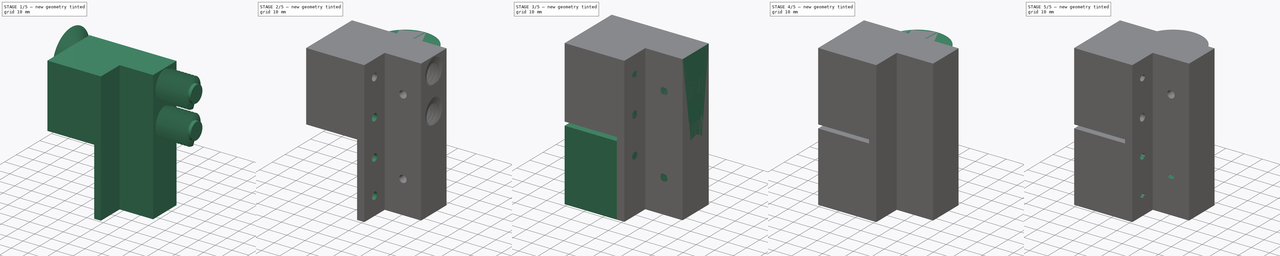
[diagram: build sequence overview — one tinted view per stage of 5, left to right]
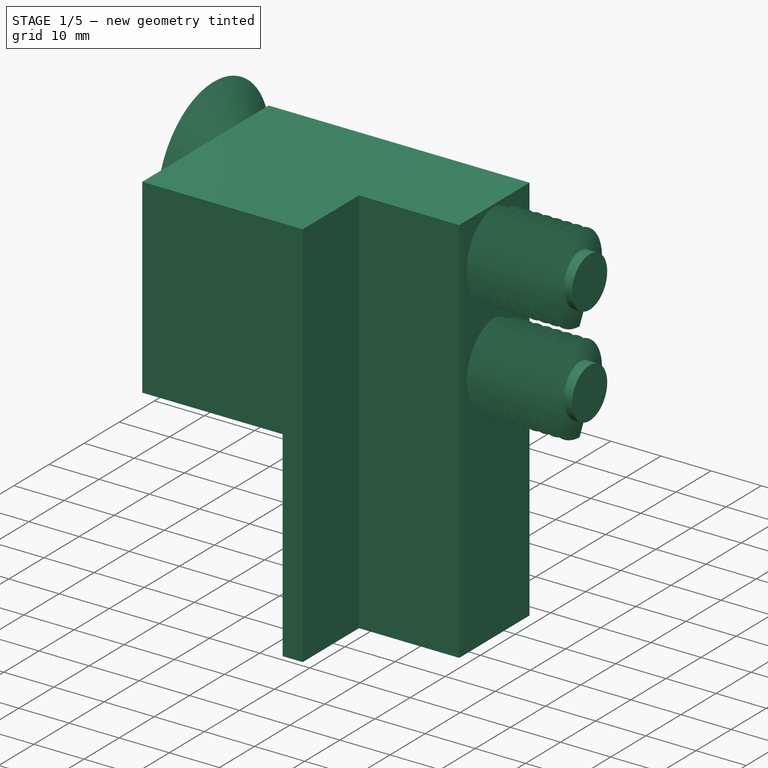
[diagram: stage 1 of 5 — iso view after this stage's code; geometry added in this stage tinted green]
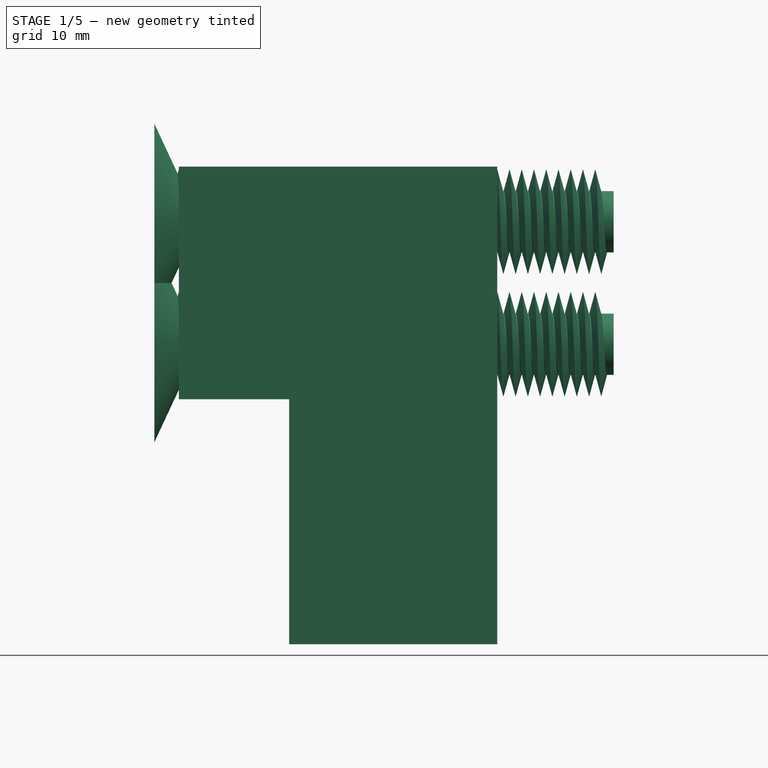
[diagram: stage 1 of 5 — front view after this stage's code; geometry added in this stage tinted green]
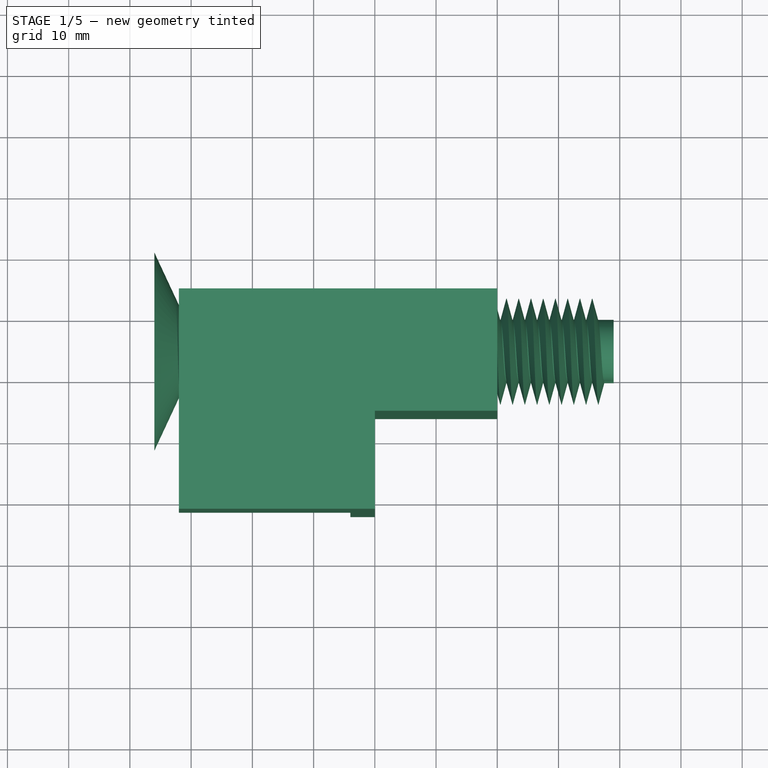
[diagram: stage 1 of 5 — top view after this stage's code; geometry added in this stage tinted green]
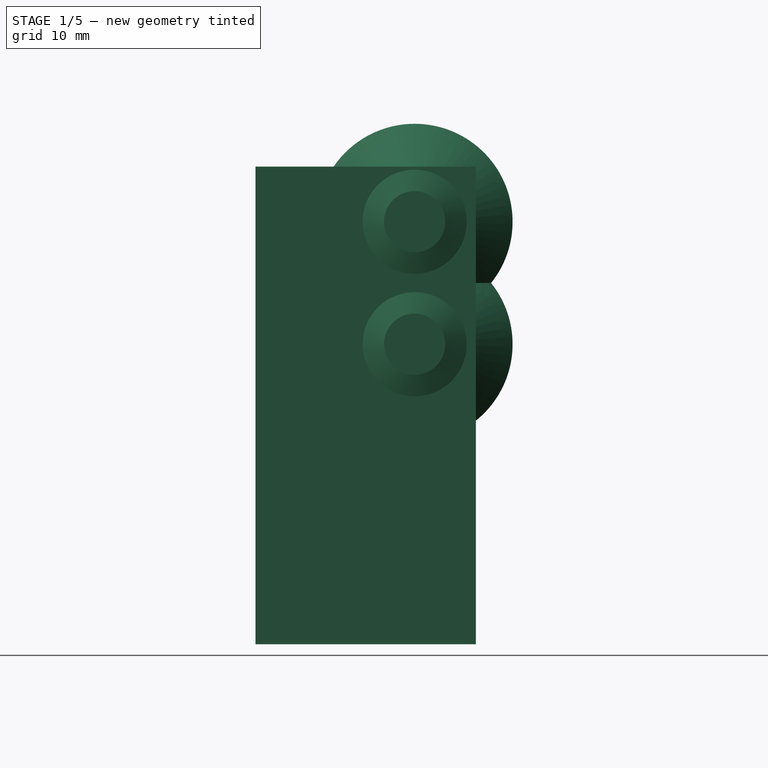
[diagram: stage 1 of 5 — right view after this stage's code; geometry added in this stage tinted green]
FCSTD DOCUMENT  (FreeCAD 1.0R39109 (Git))
Label: MUST_holder
License: All rights reserved
LicenseURL: https://en.wikipedia.org/wiki/All_rights_reserved
objects: Part::Cylinder×40, Part::MultiFuse×39, Part::Box×17, Part::Cut×15, Sketcher::SketchObject×14, PartDesign::Body×14, PartDesign::Pad×7, PartDesign::AdditiveHelix×6, App::Part×5, Part::Cone×5, Part::Chamfer×1, PartDesign::Revolution×1, Part::Prism×1, Part::Sphere×1
note: 203 computed .brp shape members not serialized (recipe doc carries the construction recipe); baked Part::Feature solids carry a one-line shape summary decoded from their .brp

FEATURE [App::Part] Part001  label="Screw"
  Group = -> [Body002,Body003,Body,Body004,Prism,Box013,Sphere,Cut009,Cut010,Cut014,Fusion044,Cut015,Fusion045]
  Origin = -> Origin005
  Placement = pos=(-50,-6,7) rot=(0,1,0;4.71239rad)
FEATURE [Part::Box] Box022  label="Cube022"
  AttacherType = Attacher::AttachEngine3D
  Height = 78
  Length = 20
  Placement = pos=(0,-16,-2) rot=(0,0,1;0rad)
  Width = 20
FEATURE [Part::Box] Box023  label="Cube023"
  AttacherType = Attacher::AttachEngine3D
  Height = 78
  Length = 4
  Placement = pos=(-4,-32,-2) rot=(0,0,1;0rad)
  Width = 36
FEATURE [Part::Box] Box024  label="Cube024"
  AttacherType = Attacher::AttachEngine3D
  Height = 38
  Length = 28
  Placement = pos=(-32,-32,38) rot=(0,0,1;0rad)
  Width = 36
FEATURE [Part::Box] Box025  label="Cube025"
  AttacherType = Attacher::AttachEngine3D
  Height = 40
  Length = 10
  Placement = pos=(-14,-16,-2) rot=(0,0,1;0rad)
  Width = 20
FEATURE [Part::Cone] Cone005
  Angle = 360
  AttacherType = Attacher::AttachEngine3D
  Height = 7
  Placement = pos=(0,0,67) rot=(0,0,1;0rad)
  Radius1 = 1
  Radius2 = 16
FEATURE [Part::Cone] Cone006
  Angle = 360
  AttacherType = Attacher::AttachEngine3D
  Height = 7
  Placement = pos=(0,0,67) rot=(0,0,1;0rad)
  Radius1 = 1
  Radius2 = 16
FEATURE [Part::Cylinder] Cylinder031
  Angle = 360
  AttacherType = Attacher::AttachEngine3D
  FirstAngle = 0
  Height = 32
  Placement = pos=(-32,-24,28) rot=(0,1,0;1.5708rad)
  Radius = 2
  SecondAngle = 0
FEATURE [Part::Cylinder] Cylinder032
  Angle = 360
  AttacherType = Attacher::AttachEngine3D
  FirstAngle = 0
  Height = 4
  Placement = pos=(-4,-24,47) rot=(0,1,0;1.5708rad)
  Radius = 2
  SecondAngle = 0
FEATURE [Part::Cylinder] Cylinder035
  Angle = 360
  AttacherType = Attacher::AttachEngine3D
  FirstAngle = 0
  Height = 2
  Placement = pos=(-32,-24,28) rot=(0,1,0;1.5708rad)
  Radius = 5.5
  SecondAngle = 0
FEATURE [Part::Cylinder] Cylinder036
  Angle = 360
  AttacherType = Attacher::AttachEngine3D
  FirstAngle = 0
  Height = 2
  Placement = pos=(-4,-24,47) rot=(0,1,0;1.5708rad)
  Radius = 5.5
  SecondAngle = 0
FEATURE [Part::Cylinder] Cylinder038
  Angle = 360
  AttacherType = Attacher::AttachEngine3D
  FirstAngle = 0
  Height = 2
  Placement = pos=(10,4,18) rot=(1,0,0;1.5708rad)
  Radius = 5.5
  SecondAngle = 0
FEATURE [Part::Cylinder] Cylinder039
  Angle = 360
  AttacherType = Attacher::AttachEngine3D
  FirstAngle = 0
  Height = 20
  Placement = pos=(10,4,58) rot=(1,0,0;1.5708rad)
  Radius = 2
  SecondAngle = 0
FEATURE [Part::Cylinder] Cylinder040
  Angle = 360
  AttacherType = Attacher::AttachEngine3D
  FirstAngle = 0
  Height = 20
  Placement = pos=(10,4,18) rot=(1,0,0;1.5708rad)
  Radius = 2
  SecondAngle = 0
FEATURE [Part::Cylinder] Cylinder041
  Angle = 360
  AttacherType = Attacher::AttachEngine3D
  FirstAngle = 0
  Height = 2
  Placement = pos=(10,4,58) rot=(1,0,0;1.5708rad)
  Radius = 5.5
  SecondAngle = 0
FEATURE [Part::MultiFuse] Fusion049
  Placement = pos=(0,0,-2) rot=(0,0,1;0rad)
  Shapes = -> [Cylinder038,Cylinder040]
FEATURE [Part::MultiFuse] Fusion050
  Shapes = -> [Cylinder041,Cylinder039]
FEATURE [Part::MultiFuse] Fusion051
  Placement = pos=(0,0,39) rot=(0,0,1;0rad)
  Shapes = -> [Cylinder031,Cylinder035]
FEATURE [Sketcher::SketchObject] Sketch021
  ArcFitTolerance = 0
  AttachmentSupport = -> [XZ_Plane028]
  FullyConstrained = true
  MakeInternals = false
  MapMode = 5
  Placement = pos=(0,0,0) rot=(1,0,0;1.5708rad)
  sketch-geometry (4):
    g0: LineSegment StartX=-4.6 StartY=-1.045 StartZ=0 EndX=-4.6 EndY=1.045 EndZ=0
    g1: LineSegment StartX=-4.6 StartY=1.045 StartZ=0 EndX=-8.5 EndY=1.2e-15 EndZ=0
    g2: LineSegment StartX=-8.5 StartY=1.2e-15 StartZ=0 EndX=-4.6 EndY=-1.045 EndZ=0
    g3: Circle [constr] CenterX=-6.41 CenterY=0 CenterZ=0 NormalX=0 NormalY=0 NormalZ=1 AngleXU=0 Radius=2.09
  constraints (12):
    c: Coincident(g0,g1)
    c: Coincident(g1,g2)
    c: Coincident(g2,g0)
    c: PointOnObject(g0,g3)
    c: PointOnObject(g1,g3)
    c: PointOnObject(g2,g3)
    c: PointOnObject(g3,g-1)
    c: Angle(g0,g-1) = 1.5708
    c: Equal(g1,g2)
    c: Angle(g2,g1) = 0.523599
    c: Distance(g1,g0) = 3.9
    c: Distance(g1,g-2) = 8.5
FEATURE [PartDesign::AdditiveHelix] AdditiveHelix008
  Angle = 0
  Axis = (0,2e-16,1)
  Base = (0,0,0)
  Growth = 0
  HasBeenEdited = true
  Height = 70
  LeftHanded = false
  Mode = 0
  Outside = false
  Pitch = 2
  Placement = pos=(0,0,0) rot=(1,0,0;1.5708rad)
  Profile = -> Sketch021
  ReferenceAxis = -> Sketch021 [V_Axis]
  Suppressed = false
  Tolerance = 0.1
  Turns = 35
FEATURE [PartDesign::Body] Body021
  AllowCompound = false
  Group = -> [Sketch021,AdditiveHelix008]
  Origin = -> Origin028
  Placement = pos=(0,0,1) rot=(0,0,1;0rad)
  Tip = -> AdditiveHelix008
FEATURE [Sketcher::SketchObject] Sketch022
  ArcFitTolerance = 0
  AttachmentSupport = -> [XY_Plane029]
  FullyConstrained = true
  MakeInternals = false
  MapMode = 5
  sketch-geometry (1):
    g0: Circle CenterX=0 CenterY=0 CenterZ=0 NormalX=0 NormalY=0 NormalZ=1 AngleXU=0 Radius=5
  constraints (2):
    c: Coincident(g0,g-1)
    c: Radius(g0) = 5
FEATURE [PartDesign::Pad] Pad009
  Direction = (0,0,1)
  Length = 74
  Length2 = 10
  Profile = -> Sketch022
  ReferenceAxis = -> Sketch022 [N_Axis]
  Suppressed = false
  Type = 0
FEATURE [PartDesign::Body] Body022
  AllowCompound = false
  Group = -> [Sketch022,Pad009]
  Origin = -> Origin029
  Placement = pos=(0,0,-1) rot=(0,0,1;0rad)
  Tip = -> Pad009
FEATURE [Part::MultiFuse] Fusion053
  Shapes = -> [Body022,Body021]
FEATURE [Part::MultiFuse] Fusion054
  Placement = pos=(38,-6,7) rot=(0,-1,0;1.5708rad)
  Shapes = -> [Fusion053,Cone005]
FEATURE [Sketcher::SketchObject] Sketch023
  ArcFitTolerance = 0
  AttachmentSupport = -> [XZ_Plane030]
  FullyConstrained = true
  MakeInternals = false
  MapMode = 5
  Placement = pos=(0,0,0) rot=(1,0,0;1.5708rad)
  sketch-geometry (4):
    g0: LineSegment StartX=-4.6 StartY=-1.045 StartZ=0 EndX=-4.6 EndY=1.045 EndZ=0
    g1: LineSegment StartX=-4.6 StartY=1.045 StartZ=0 EndX=-8.5 EndY=1.2e-15 EndZ=0
    g2: LineSegment StartX=-8.5 StartY=1.2e-15 StartZ=0 EndX=-4.6 EndY=-1.045 EndZ=0
    g3: Circle [constr] CenterX=-6.41 CenterY=0 CenterZ=0 NormalX=0 NormalY=0 NormalZ=1 AngleXU=0 Radius=2.09
  constraints (12):
    c: Coincident(g0,g1)
    c: Coincident(g1,g2)
    c: Coincident(g2,g0)
    c: PointOnObject(g0,g3)
    c: PointOnObject(g1,g3)
    c: PointOnObject(g2,g3)
    c: PointOnObject(g3,g-1)
    c: Angle(g0,g-1) = 1.5708
    c: Equal(g1,g2)
    c: Angle(g2,g1) = 0.523599
    c: Distance(g1,g0) = 3.9
    c: Distance(g1,g-2) = 8.5
FEATURE [PartDesign::AdditiveHelix] AdditiveHelix009
  Angle = 0
  Axis = (0,2e-16,1)
  Base = (0,0,0)
  Growth = 0
  HasBeenEdited = true
  Height = 70
  LeftHanded = false
  Mode = 0
  Outside = false
  Pitch = 2
  Placement = pos=(0,0,0) rot=(1,0,0;1.5708rad)
  Profile = -> Sketch023
  ReferenceAxis = -> Sketch023 [V_Axis]
  Suppressed = false
  Tolerance = 0.1
  Turns = 35
FEATURE [PartDesign::Body] Body023
  AllowCompound = false
  Group = -> [Sketch023,AdditiveHelix009]
  Origin = -> Origin030
  Placement = pos=(0,0,1) rot=(0,0,1;0rad)
  Tip = -> AdditiveHelix009
FEATURE [Sketcher::SketchObject] Sketch024
  ArcFitTolerance = 0
  AttachmentSupport = -> [XY_Plane031]
  FullyConstrained = true
  MakeInternals = false
  MapMode = 5
  sketch-geometry (1):
    g0: Circle CenterX=0 CenterY=0 CenterZ=0 NormalX=0 NormalY=0 NormalZ=1 AngleXU=0 Radius=5
  constraints (2):
    c: Coincident(g0,g-1)
    c: Radius(g0) = 5
FEATURE [PartDesign::Pad] Pad010
  Direction = (0,0,1)
  Length = 74
  Length2 = 10
  Profile = -> Sketch024
  ReferenceAxis = -> Sketch024 [N_Axis]
  Suppressed = false
  Type = 0
FEATURE [PartDesign::Body] Body024
  AllowCompound = false
  Group = -> [Sketch024,Pad010]
  Origin = -> Origin031
  Placement = pos=(0,0,-1) rot=(0,0,1;0rad)
  Tip = -> Pad010
FEATURE [Part::MultiFuse] Fusion055
  Shapes = -> [Body024,Body023]
FEATURE [Part::MultiFuse] Fusion056
  Placement = pos=(38,-6,27) rot=(0,-1,0;1.5708rad)
  Shapes = -> [Fusion055,Cone006]
FEATURE [Part::MultiFuse] Fusion057
  Placement = pos=(0,0,40) rot=(0,0,1;0rad)
  Shapes = -> [Fusion054,Fusion056]
FEATURE [Part::MultiFuse] Fusion059
  Shapes = -> [Box022,Box023,Box024,Box025]
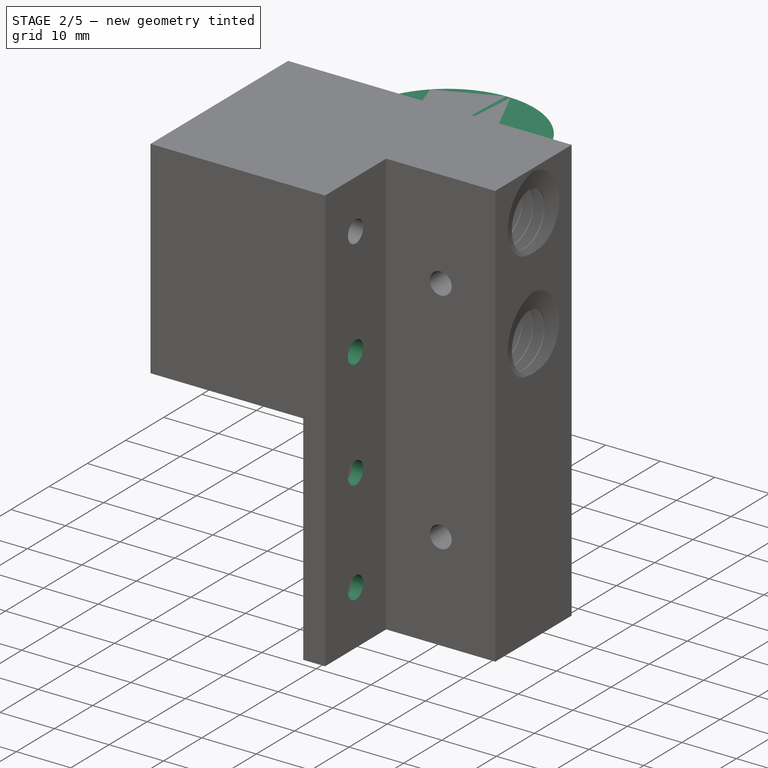
[diagram: stage 2 of 5 — iso view after this stage's code; geometry added in this stage tinted green]
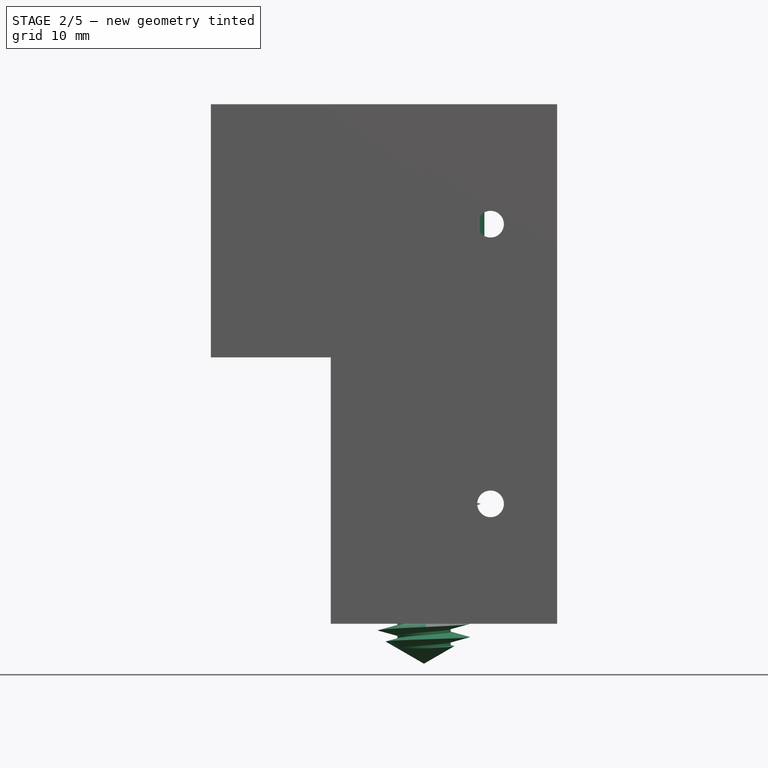
[diagram: stage 2 of 5 — front view after this stage's code; geometry added in this stage tinted green]
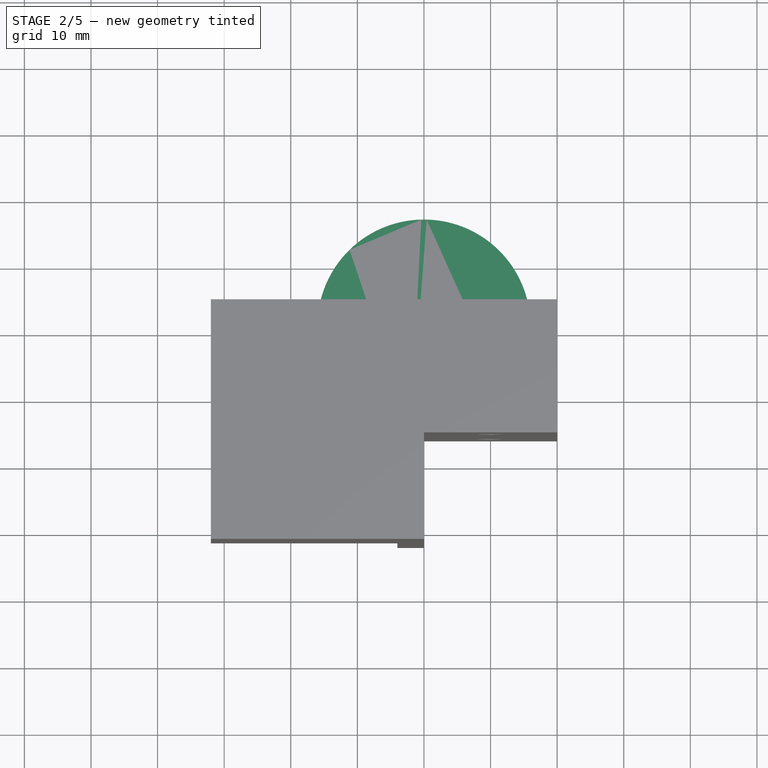
[diagram: stage 2 of 5 — top view after this stage's code; geometry added in this stage tinted green]
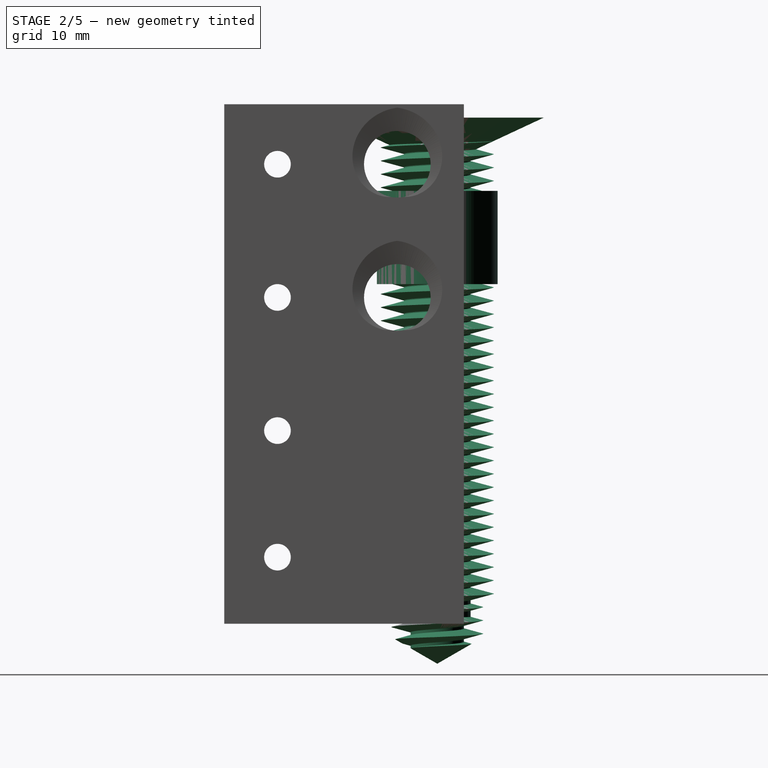
[diagram: stage 2 of 5 — right view after this stage's code; geometry added in this stage tinted green]
FEATURE [App::Part] Part  label="BackyardRightV1"
  Group = -> [Box012,Fusion015,Fusion014,Cut006,Cut002,Cut005,Cut001,Fusion013,Cut004,Fusion,Box002,Box,Box001,Cylinder,Cylinder001,Cylinder002,Cylinder003,Cylinder004,Cylinder005,Box005,Cylinder006,Cylinder007,Cylinder008,Cylinder009,Box009,Box010,Fusion005,Fusion006,Fusion007,Cylinder010,Cylinder011,Cylinder012,Cylinder013,Fusion011,Fusion012,Box011,Cylinder014,Cylinder015,Cut,Cut003,Cut007,Chamfer]
  Origin = -> Origin
  Placement = pos=(0,42,0) rot=(0,0,1;0rad)
FEATURE [Sketcher::SketchObject] Sketch002
  ArcFitTolerance = 0
  AttachmentSupport = -> [XZ_Plane004]
  FullyConstrained = false
  MakeInternals = false
  MapMode = 5
  Placement = pos=(0,0,0) rot=(1,0,0;1.5708rad)
  sketch-geometry (4):
    g0: LineSegment StartX=0 StartY=0 StartZ=0 EndX=0 EndY=2.00024 EndZ=0
    g1: LineSegment StartX=0 StartY=2.00024 StartZ=0 EndX=12.1246 EndY=9.00047 EndZ=0
    g2: LineSegment StartX=12.1246 StartY=9.00047 StartZ=0 EndX=12.1246 EndY=0 EndZ=0
    g3: LineSegment StartX=12.1246 StartY=0 StartZ=0 EndX=0 EndY=0 EndZ=0
  constraints (8):
    c: Coincident(g-1,g0)
    c: PointOnObject(g0,g-2)
    c: Coincident(g0,g1)
    c: Coincident(g1,g2)
    c: PointOnObject(g2,g-1)
    c: Vertical(g2)
    c: Coincident(g2,g3)
    c: Coincident(g3,g0)
FEATURE [PartDesign::Revolution] Revolution
  Angle = 360
  Angle2 = 60
  Axis = (0,2e-16,1)
  Base = (0,0,0)
  Placement = pos=(0,0,0) rot=(1,0,0;1.5708rad)
  Profile = -> Sketch002
  ReferenceAxis = -> Sketch002 [V_Axis]
  Reversed = true
  Suppressed = false
  Type = 0
FEATURE [PartDesign::Body] Body002
  AllowCompound = false
  Group = -> [Sketch002,Revolution]
  Origin = -> Origin004
  Placement = pos=(0,0,-10) rot=(0,0,1;0rad)
  Tip = -> Revolution
FEATURE [Sketcher::SketchObject] Sketch003
  ArcFitTolerance = 0
  AttachmentSupport = -> [XY_Plane006]
  FullyConstrained = false
  MakeInternals = false
  MapMode = 5
  sketch-geometry (1):
    g0: Circle CenterX=0 CenterY=0 CenterZ=0 NormalX=0 NormalY=0 NormalZ=1 AngleXU=0 Radius=9.06827
  constraints (1):
    c: Coincident(g0,g-1)
FEATURE [PartDesign::Pad] Pad001
  Direction = (0,0,1)
  Length = 14
  Length2 = 10
  Profile = -> Sketch003
  ReferenceAxis = -> Sketch003 [N_Axis]
  Suppressed = false
  Type = 0
FEATURE [PartDesign::Body] Body003
  AllowCompound = false
  Group = -> [Sketch003,Pad001]
  Origin = -> Origin006
  Placement = pos=(0,0,48) rot=(0,0,1;0rad)
  Tip = -> Pad001
FEATURE [Sketcher::SketchObject] Sketch
  ArcFitTolerance = 0
  AttachmentSupport = -> [XZ_Plane007]
  FullyConstrained = true
  MakeInternals = false
  MapMode = 5
  Placement = pos=(0,0,0) rot=(1,0,0;1.5708rad)
  sketch-geometry (4):
    g0: LineSegment StartX=-3 StartY=-1.045 StartZ=0 EndX=-3 EndY=1.045 EndZ=0
    g1: LineSegment StartX=-3 StartY=1.045 StartZ=0 EndX=-6.9 EndY=0 EndZ=0
    g2: LineSegment StartX=-6.9 StartY=0 StartZ=0 EndX=-3 EndY=-1.045 EndZ=0
    g3: Circle [constr] CenterX=-4.81 CenterY=0 CenterZ=0 NormalX=0 NormalY=0 NormalZ=1 AngleXU=0 Radius=2.09
  constraints (12):
    c: Coincident(g0,g1)
    c: Coincident(g1,g2)
    c: Coincident(g2,g0)
    c: PointOnObject(g0,g3)
    c: PointOnObject(g1,g3)
    c: PointOnObject(g2,g3)
    c: PointOnObject(g3,g-1)
    c: Angle(g0,g-1) = 1.5708
    c: Equal(g1,g2)
    c: Angle(g2,g1) = 0.523599
    c: Distance(g1,g0) = 3.9
    c: Distance(g1,g-2) = 6.9
FEATURE [PartDesign::AdditiveHelix] AdditiveHelix
  Angle = 0
  Axis = (0,2e-16,1)
  Base = (0,0,0)
  Growth = 0
  HasBeenEdited = true
  Height = 57
  LeftHanded = false
  Mode = 0
  Outside = false
  Pitch = 2
  Placement = pos=(0,0,0) rot=(1,0,0;1.5708rad)
  Profile = -> Sketch
  ReferenceAxis = -> Sketch [V_Axis]
  Suppressed = false
  Tolerance = 0.1
  Turns = 28.5
FEATURE [PartDesign::Body] Body
  AllowCompound = false
  Group = -> [Sketch,AdditiveHelix]
  Origin = -> Origin007
  Placement = pos=(0,0,-7) rot=(0,0,1;0rad)
  Tip = -> AdditiveHelix
FEATURE [Sketcher::SketchObject] Sketch004
  ArcFitTolerance = 0
  AttachmentSupport = -> [XY_Plane008]
  FullyConstrained = true
  MakeInternals = false
  MapMode = 5
  sketch-geometry (1):
    g0: Circle CenterX=0 CenterY=0 CenterZ=0 NormalX=0 NormalY=0 NormalZ=1 AngleXU=0 Radius=4
  constraints (2):
    c: Coincident(g0,g-1)
    c: Radius(g0) = 4
FEATURE [PartDesign::Pad] Pad
  Direction = (0,0,1)
  Length = 60
  Length2 = 10
  Profile = -> Sketch004
  ReferenceAxis = -> Sketch004 [N_Axis]
  Suppressed = false
  Type = 0
FEATURE [PartDesign::Body] Body004
  AllowCompound = false
  Group = -> [Sketch004,Pad]
  Origin = -> Origin008
  Placement = pos=(0,0,-10) rot=(0,0,1;0rad)
  Tip = -> Pad
FEATURE [Part::Prism] Prism
  AttacherType = Attacher::AttachEngine3D
  Circumradius = 8
  FirstAngle = 0
  Height = 12
  Placement = pos=(0,0,100) rot=(0,0,1;0rad)
  Polygon = 6
  SecondAngle = 0
FEATURE [Part::Box] Box013  label="Cube013"
  AttacherType = Attacher::AttachEngine3D
  Height = 10
  Length = 20
  Placement = pos=(-10,-10,70) rot=(0,0,1;0rad)
  Width = 20
FEATURE [Part::Sphere] Sphere
  Angle1 = -90
  Angle2 = 90
  Angle3 = 360
  AttacherType = Attacher::AttachEngine3D
  Placement = pos=(0,0,80) rot=(0,0,1;0rad)
  Radius = 8
FEATURE [Part::Cut] Cut009
  Base = -> Box013
  Placement = pos=(0,0,28) rot=(0,0,1;0rad)
  Tool = -> Sphere
FEATURE [Part::Cut] Cut010
  Base = -> Prism
  Placement = pos=(0,0,-50) rot=(0,0,1;0rad)
  Tool = -> Cut009
FEATURE [Part::Cone] Cone004
  Angle = 360
  AttacherType = Attacher::AttachEngine3D
  Height = 7
  Placement = pos=(0,0,67) rot=(0,0,1;0rad)
  Radius1 = 1
  Radius2 = 16
FEATURE [Sketcher::SketchObject] Sketch019
  ArcFitTolerance = 0
  AttachmentSupport = -> [XZ_Plane025]
  FullyConstrained = true
  MakeInternals = false
  MapMode = 5
  Placement = pos=(0,0,0) rot=(1,0,0;1.5708rad)
  sketch-geometry (4):
    g0: LineSegment StartX=-4.6 StartY=-1.045 StartZ=0 EndX=-4.6 EndY=1.045 EndZ=0
    g1: LineSegment StartX=-4.6 StartY=1.045 StartZ=0 EndX=-8.5 EndY=1.2e-15 EndZ=0
    g2: LineSegment StartX=-8.5 StartY=1e-15 StartZ=0 EndX=-4.6 EndY=-1.045 EndZ=0
    g3: Circle [constr] CenterX=-6.41 CenterY=0 CenterZ=0 NormalX=0 NormalY=0 NormalZ=1 AngleXU=0 Radius=2.09
  constraints (12):
    c: Coincident(g0,g1)
    c: Coincident(g1,g2)
    c: Coincident(g2,g0)
    c: PointOnObject(g0,g3)
    c: PointOnObject(g1,g3)
    c: PointOnObject(g2,g3)
    c: PointOnObject(g3,g-1)
    c: Angle(g0,g-1) = 1.5708
    c: Equal(g1,g2)
    c: Angle(g2,g1) = 0.523599
    c: Distance(g1,g0) = 3.9
    c: Distance(g1,g-2) = 8.5
FEATURE [PartDesign::AdditiveHelix] AdditiveHelix007
  Angle = 0
  Axis = (0,2e-16,1)
  Base = (0,0,0)
  Growth = 0
  HasBeenEdited = true
  Height = 70
  LeftHanded = false
  Mode = 0
  Outside = false
  Pitch = 2
  Placement = pos=(0,0,0) rot=(1,0,0;1.5708rad)
  Profile = -> Sketch019
  ReferenceAxis = -> Sketch019 [V_Axis]
  Suppressed = false
  Tolerance = 0.1
  Turns = 35
FEATURE [PartDesign::Body] Body019
  AllowCompound = false
  Group = -> [Sketch019,AdditiveHelix007]
  Origin = -> Origin025
  Placement = pos=(0,0,1) rot=(0,0,1;0rad)
  Tip = -> AdditiveHelix007
FEATURE [Sketcher::SketchObject] Sketch020
  ArcFitTolerance = 0
  AttachmentSupport = -> [XY_Plane026]
  FullyConstrained = true
  MakeInternals = false
  MapMode = 5
  sketch-geometry (1):
    g0: Circle CenterX=0 CenterY=0 CenterZ=0 NormalX=0 NormalY=0 NormalZ=1 AngleXU=0 Radius=5
  constraints (2):
    c: Coincident(g0,g-1)
    c: Radius(g0) = 5
FEATURE [PartDesign::Pad] Pad008
  Direction = (0,0,1)
  Length = 74
  Length2 = 10
  Profile = -> Sketch020
  ReferenceAxis = -> Sketch020 [N_Axis]
  Suppressed = false
  Type = 0
FEATURE [PartDesign::Body] Body020
  AllowCompound = false
  Group = -> [Sketch020,Pad008]
  Origin = -> Origin026
  Placement = pos=(0,0,-1) rot=(0,0,1;0rad)
  Tip = -> Pad008
FEATURE [Part::MultiFuse] Fusion040
  Shapes = -> [Body020,Body019]
FEATURE [App::Part] Part002  label="BackyardRightV2"
  Group = -> [Fusion043,Box014,Box015,Box019,Box021,Cylinder016,Cylinder017,Cylinder018,Cylinder019,Cylinder022,Cylinder023,Cylinder024,Cylinder025,Cylinder026,Cylinder027,Cylinder028,Cylinder029,Fusion019,Fusion020,Fusion021,Fusion022,Fusion023,Fusion027,Fusion028,Fusion041,Body019,Body020,Cone004,Fusion040,Fusion042,Cut012,Fusion039,Body017,Body018,Cone003,Fusion038,Cut013]
  Origin = -> Origin009
FEATURE [Part::Cut] Cut014
  Base = -> Body003
  Placement = pos=(0,0,1) rot=(0,0,1;0rad)
  Tool = -> Cut010
FEATURE [Part::MultiFuse] Fusion044
  Shapes = -> [Body,Body004]
FEATURE [Part::Cut] Cut015
  Base = -> Fusion044
  Tool = -> Body002
FEATURE [Part::MultiFuse] Fusion045
  Shapes = -> [Cut015,Cut014]
FEATURE [Part::Cylinder] Cylinder030
  Angle = 360
  AttacherType = Attacher::AttachEngine3D
  FirstAngle = 0
  Height = 32
  Placement = pos=(-24,-24,9) rot=(0,1,0;1.5708rad)
  Radius = 2
  SecondAngle = 0
FEATURE [Part::Cylinder] Cylinder033
  Angle = 360
  AttacherType = Attacher::AttachEngine3D
  FirstAngle = 0
  Height = 4
  Placement = pos=(-4,-24,66) rot=(0,1,0;1.5708rad)
  Radius = 2
  SecondAngle = 0
FEATURE [Part::Cylinder] Cylinder034
  Angle = 360
  AttacherType = Attacher::AttachEngine3D
  FirstAngle = 0
  Height = 2
  Placement = pos=(-24,-24,9) rot=(0,1,0;1.5708rad)
  Radius = 5.5
  SecondAngle = 0
FEATURE [Part::Cylinder] Cylinder037
  Angle = 360
  AttacherType = Attacher::AttachEngine3D
  FirstAngle = 0
  Height = 2
  Placement = pos=(-4,-24,66) rot=(0,1,0;1.5708rad)
  Radius = 5.5
  SecondAngle = 0
FEATURE [Part::MultiFuse] Fusion046
  Placement = pos=(-8,0,38) rot=(0,1,0;0rad)
  Shapes = -> [Cylinder030,Cylinder034]
FEATURE [Part::MultiFuse] Fusion047
  Placement = pos=(0,0,-39) rot=(0,0,1;0rad)
  Shapes = -> [Cylinder033,Cylinder037]
FEATURE [Part::MultiFuse] Fusion048
  Placement = pos=(0,0,-39) rot=(0,0,1;0rad)
  Shapes = -> [Cylinder032,Cylinder036]
FEATURE [Part::MultiFuse] Fusion058
  Shapes = -> [Fusion046,Fusion047,Fusion048,Fusion049,Fusion050,Fusion051,Fusion057]
FEATURE [Part::Cut] Cut016
  Base = -> Fusion059
  Tool = -> Fusion058
FEATURE [App::Part] Part004  label="BackyardLeftV2"
  Group = -> [Box022,Box023,Fusion048,Fusion049,Fusion050,Box025,Fusion051,Box024,Body023,Cylinder040,Cylinder030,Cylinder033,Cylinder034,Cylinder041,Fusion046,Cylinder032,Body021,Body024,Fusion056,Cone005,Cone006,Fusion053,Fusion054,Cylinder039,Cylinder031,Fusion047,Fusion058,Cylinder035,Fusion055,Fusion057,Cylinder036,Cylinder038,Body022,Cylinder037,Fusion059,Cut016]
  Origin = -> Origin027
  Placement = pos=(0,0,100) rot=(0,0,1;0rad)
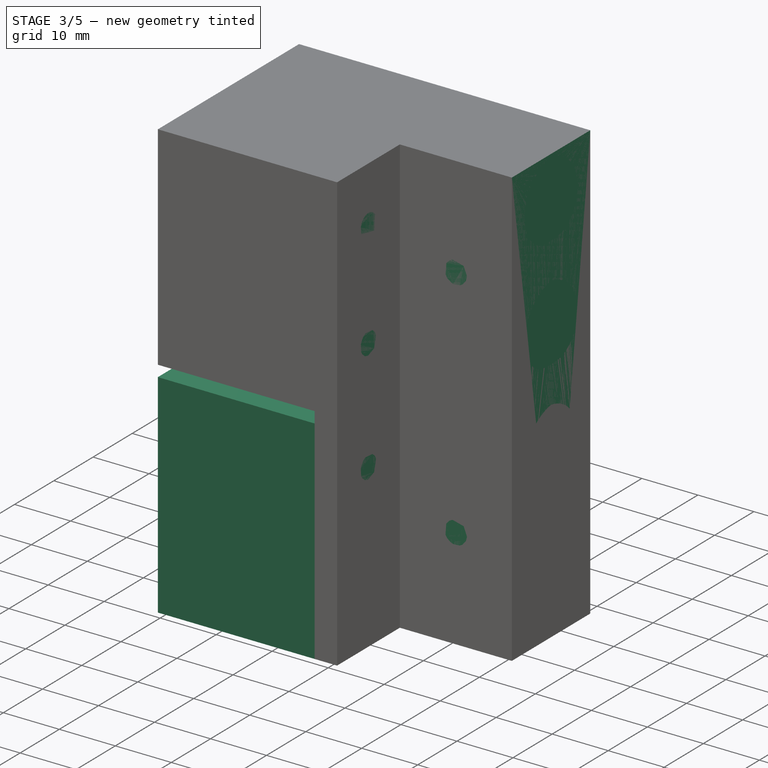
[diagram: stage 3 of 5 — iso view after this stage's code; geometry added in this stage tinted green]
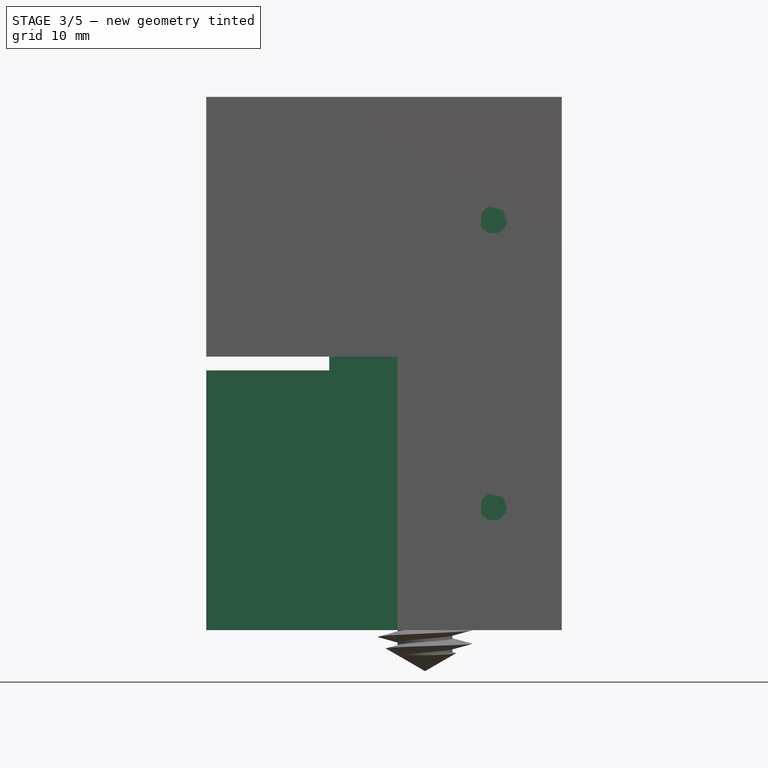
[diagram: stage 3 of 5 — front view after this stage's code; geometry added in this stage tinted green]
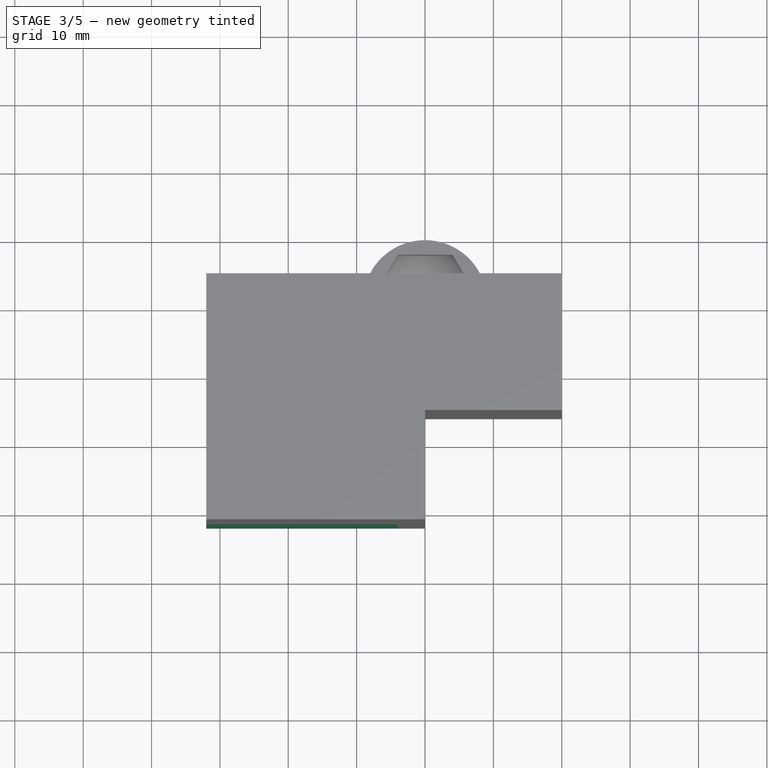
[diagram: stage 3 of 5 — top view after this stage's code; geometry added in this stage tinted green]
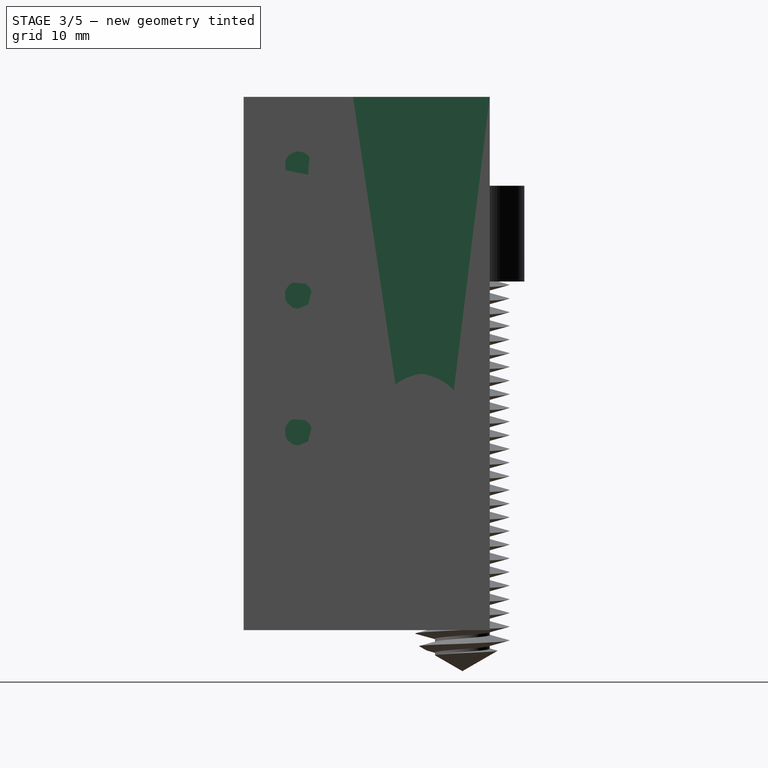
[diagram: stage 3 of 5 — right view after this stage's code; geometry added in this stage tinted green]
FEATURE [Part::Box] Box014  label="Cube014"
  AttacherType = Attacher::AttachEngine3D
  Height = 78
  Length = 20
  Placement = pos=(0,-16,-2) rot=(0,0,1;0rad)
  Width = 20
FEATURE [Part::Box] Box015  label="Cube015"
  AttacherType = Attacher::AttachEngine3D
  Height = 78
  Length = 4
  Placement = pos=(-4,-32,-2) rot=(0,0,1;0rad)
  Width = 36
FEATURE [Part::Box] Box019  label="Cube019"
  AttacherType = Attacher::AttachEngine3D
  Height = 38
  Length = 28
  Placement = pos=(-32,-32,-2) rot=(0,0,1;0rad)
  Width = 36
FEATURE [Part::Box] Box021  label="Cube021"
  AttacherType = Attacher::AttachEngine3D
  Height = 40
  Length = 10
  Placement = pos=(-14,-16,36) rot=(0,0,1;0rad)
  Width = 20
FEATURE [Part::Cylinder] Cylinder017
  Angle = 360
  AttacherType = Attacher::AttachEngine3D
  FirstAngle = 0
  Height = 32
  Placement = pos=(-32,-24,28) rot=(0,1,0;1.5708rad)
  Radius = 2
  SecondAngle = 0
FEATURE [Part::Cylinder] Cylinder018
  Angle = 360
  AttacherType = Attacher::AttachEngine3D
  FirstAngle = 0
  Height = 4
  Placement = pos=(-4,-24,47) rot=(0,1,0;1.5708rad)
  Radius = 2
  SecondAngle = 0
FEATURE [Part::Cylinder] Cylinder019
  Angle = 360
  AttacherType = Attacher::AttachEngine3D
  FirstAngle = 0
  Height = 4
  Placement = pos=(-4,-24,66) rot=(0,1,0;1.5708rad)
  Radius = 2
  SecondAngle = 0
FEATURE [Part::Cylinder] Cylinder023
  Angle = 360
  AttacherType = Attacher::AttachEngine3D
  FirstAngle = 0
  Height = 2
  Placement = pos=(-32,-24,28) rot=(0,1,0;1.5708rad)
  Radius = 5.5
  SecondAngle = 0
FEATURE [Part::Cylinder] Cylinder024
  Angle = 360
  AttacherType = Attacher::AttachEngine3D
  FirstAngle = 0
  Height = 2
  Placement = pos=(-4,-24,47) rot=(0,1,0;1.5708rad)
  Radius = 5.5
  SecondAngle = 0
FEATURE [Part::Cylinder] Cylinder025
  Angle = 360
  AttacherType = Attacher::AttachEngine3D
  FirstAngle = 0
  Height = 2
  Placement = pos=(-4,-24,66) rot=(0,1,0;1.5708rad)
  Radius = 5.5
  SecondAngle = 0
FEATURE [Part::Cylinder] Cylinder026
  Angle = 360
  AttacherType = Attacher::AttachEngine3D
  FirstAngle = 0
  Height = 2
  Placement = pos=(10,4,18) rot=(1,0,0;1.5708rad)
  Radius = 5.5
  SecondAngle = 0
FEATURE [Part::Cylinder] Cylinder027
  Angle = 360
  AttacherType = Attacher::AttachEngine3D
  FirstAngle = 0
  Height = 20
  Placement = pos=(10,4,58) rot=(1,0,0;1.5708rad)
  Radius = 2
  SecondAngle = 0
FEATURE [Part::Cylinder] Cylinder028
  Angle = 360
  AttacherType = Attacher::AttachEngine3D
  FirstAngle = 0
  Height = 20
  Placement = pos=(10,4,18) rot=(1,0,0;1.5708rad)
  Radius = 2
  SecondAngle = 0
FEATURE [Part::Cylinder] Cylinder029
  Angle = 360
  AttacherType = Attacher::AttachEngine3D
  FirstAngle = 0
  Height = 2
  Placement = pos=(10,4,58) rot=(1,0,0;1.5708rad)
  Radius = 5.5
  SecondAngle = 0
FEATURE [Part::MultiFuse] Fusion021
  Shapes = -> [Cylinder018,Cylinder024]
FEATURE [Part::MultiFuse] Fusion022
  Placement = pos=(0,0,-2) rot=(0,0,1;0rad)
  Shapes = -> [Cylinder026,Cylinder028]
FEATURE [Part::MultiFuse] Fusion023
  Shapes = -> [Cylinder029,Cylinder027]
FEATURE [Part::MultiFuse] Fusion027
  Placement = pos=(0,0,-1) rot=(0,0,1;0rad)
  Shapes = -> [Cylinder017,Cylinder023]
FEATURE [Part::MultiFuse] Fusion028
  Shapes = -> [Box021,Box015,Box019,Box014]
FEATURE [App::Part] Part003  label="ScrewCut"
  Group = -> [Body005,Body008,Cone,Fusion032,Fusion033]
  Origin = -> Origin011
  Placement = pos=(-50,-6,27) rot=(0,1,0;4.71239rad)
FEATURE [Part::Cone] Cone003
  Angle = 360
  AttacherType = Attacher::AttachEngine3D
  Height = 7
  Placement = pos=(0,0,67) rot=(0,0,1;0rad)
  Radius1 = 1
  Radius2 = 16
FEATURE [Sketcher::SketchObject] Sketch017
  ArcFitTolerance = 0
  AttachmentSupport = -> [XZ_Plane023]
  FullyConstrained = true
  MakeInternals = false
  MapMode = 5
  Placement = pos=(0,0,0) rot=(1,0,0;1.5708rad)
  sketch-geometry (4):
    g0: LineSegment StartX=-4.6 StartY=-1.045 StartZ=0 EndX=-4.6 EndY=1.045 EndZ=0
    g1: LineSegment StartX=-4.6 StartY=1.045 StartZ=0 EndX=-8.5 EndY=1.2e-15 EndZ=0
    g2: LineSegment StartX=-8.5 StartY=1.2e-15 StartZ=0 EndX=-4.6 EndY=-1.045 EndZ=0
    g3: Circle [constr] CenterX=-6.41 CenterY=0 CenterZ=0 NormalX=0 NormalY=0 NormalZ=1 AngleXU=0 Radius=2.09
  constraints (12):
    c: Coincident(g0,g1)
    c: Coincident(g1,g2)
    c: Coincident(g2,g0)
    c: PointOnObject(g0,g3)
    c: PointOnObject(g1,g3)
    c: PointOnObject(g2,g3)
    c: PointOnObject(g3,g-1)
    c: Angle(g0,g-1) = 1.5708
    c: Equal(g1,g2)
    c: Angle(g2,g1) = 0.523599
    c: Distance(g1,g0) = 3.9
    c: Distance(g1,g-2) = 8.5
FEATURE [PartDesign::AdditiveHelix] AdditiveHelix006
  Angle = 0
  Axis = (0,2e-16,1)
  Base = (0,0,0)
  Growth = 0
  HasBeenEdited = true
  Height = 70
  LeftHanded = false
  Mode = 0
  Outside = false
  Pitch = 2
  Placement = pos=(0,0,0) rot=(1,0,0;1.5708rad)
  Profile = -> Sketch017
  ReferenceAxis = -> Sketch017 [V_Axis]
  Suppressed = false
  Tolerance = 0.1
  Turns = 35
FEATURE [PartDesign::Body] Body017
  AllowCompound = false
  Group = -> [Sketch017,AdditiveHelix006]
  Origin = -> Origin023
  Placement = pos=(0,0,1) rot=(0,0,1;0rad)
  Tip = -> AdditiveHelix006
FEATURE [Sketcher::SketchObject] Sketch018
  ArcFitTolerance = 0
  AttachmentSupport = -> [XY_Plane024]
  FullyConstrained = true
  MakeInternals = false
  MapMode = 5
  sketch-geometry (1):
    g0: Circle CenterX=0 CenterY=0 CenterZ=0 NormalX=0 NormalY=0 NormalZ=1 AngleXU=0 Radius=5
  constraints (2):
    c: Coincident(g0,g-1)
    c: Radius(g0) = 5
FEATURE [PartDesign::Pad] Pad007
  Direction = (0,0,1)
  Length = 74
  Length2 = 10
  Profile = -> Sketch018
  ReferenceAxis = -> Sketch018 [N_Axis]
  Suppressed = false
  Type = 0
FEATURE [PartDesign::Body] Body018
  AllowCompound = false
  Group = -> [Sketch018,Pad007]
  Origin = -> Origin024
  Placement = pos=(0,0,-1) rot=(0,0,1;0rad)
  Tip = -> Pad007
FEATURE [Part::MultiFuse] Fusion038
  Shapes = -> [Body018,Body017]
FEATURE [Part::MultiFuse] Fusion039
  Placement = pos=(38,-6,7) rot=(0,-1,0;1.5708rad)
  Shapes = -> [Fusion038,Cone003]
FEATURE [Part::MultiFuse] Fusion041
  Placement = pos=(38,-6,27) rot=(0,-1,0;1.5708rad)
  Shapes = -> [Fusion040,Cone004]
FEATURE [Part::MultiFuse] Fusion042
  Shapes = -> [Fusion039,Fusion041]
FEATURE [Part::Cut] Cut012
  Base = -> Fusion028
  Tool = -> Fusion042
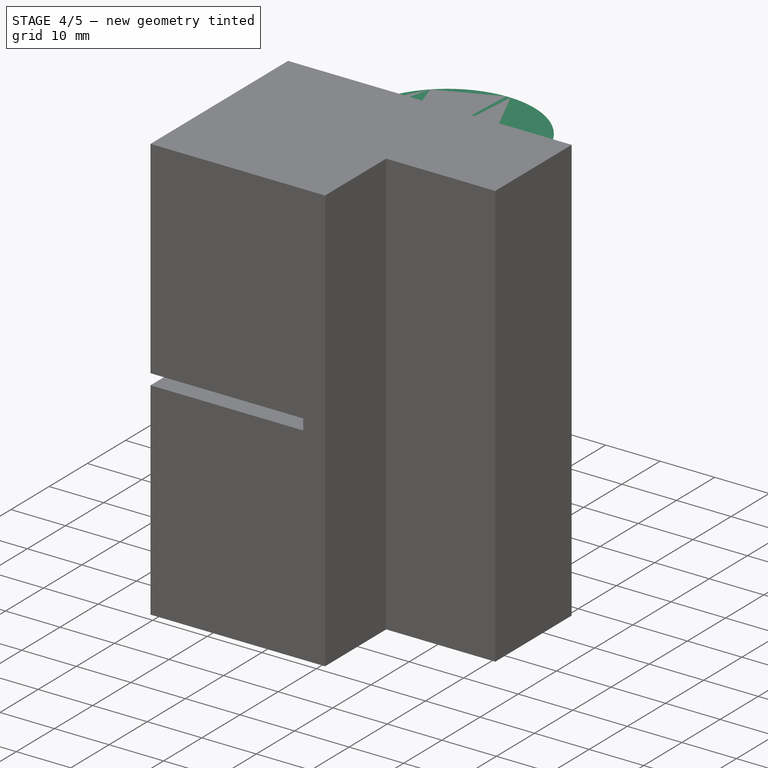
[diagram: stage 4 of 5 — iso view after this stage's code; geometry added in this stage tinted green]
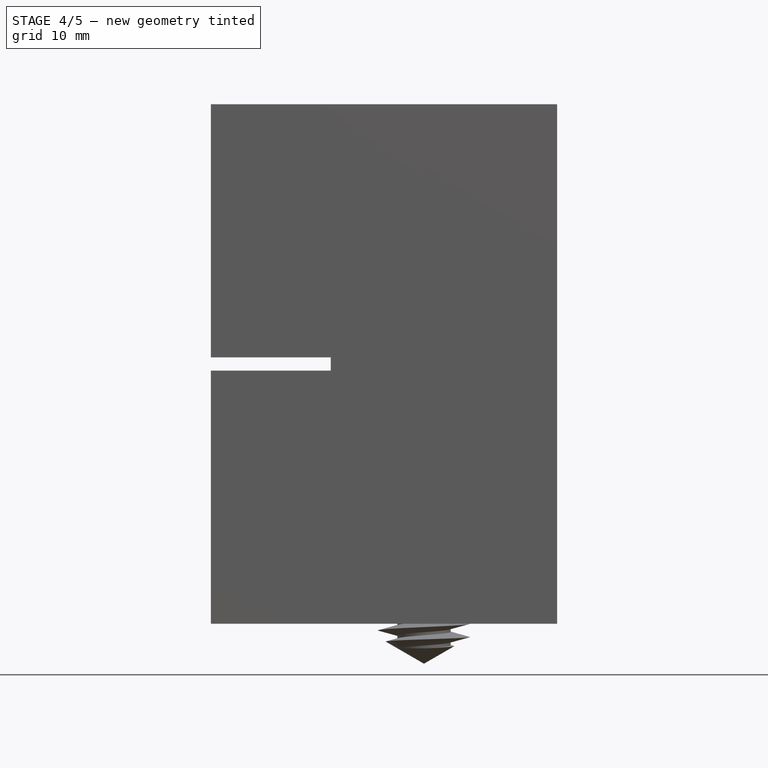
[diagram: stage 4 of 5 — front view after this stage's code; geometry added in this stage tinted green]
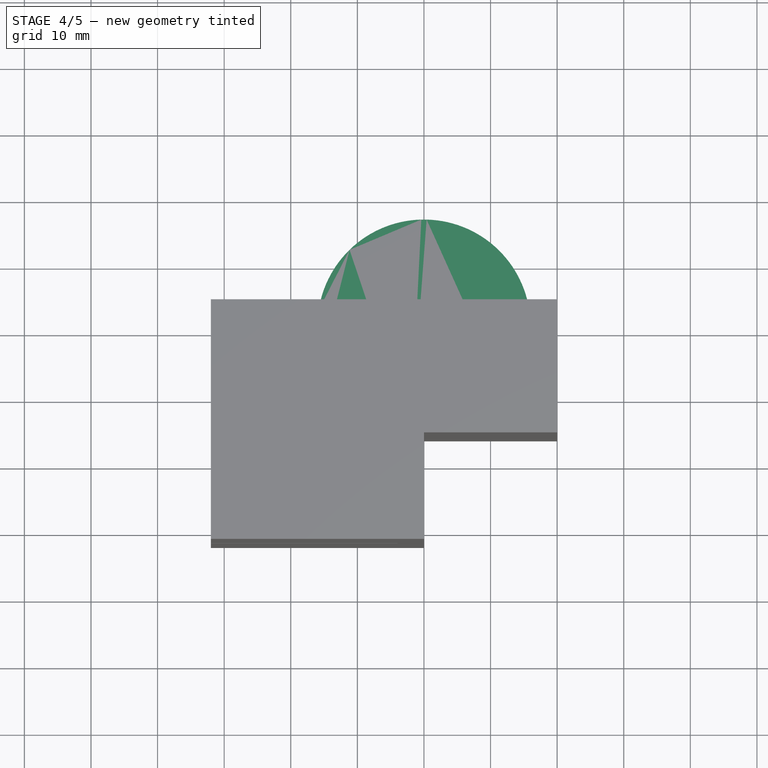
[diagram: stage 4 of 5 — top view after this stage's code; geometry added in this stage tinted green]
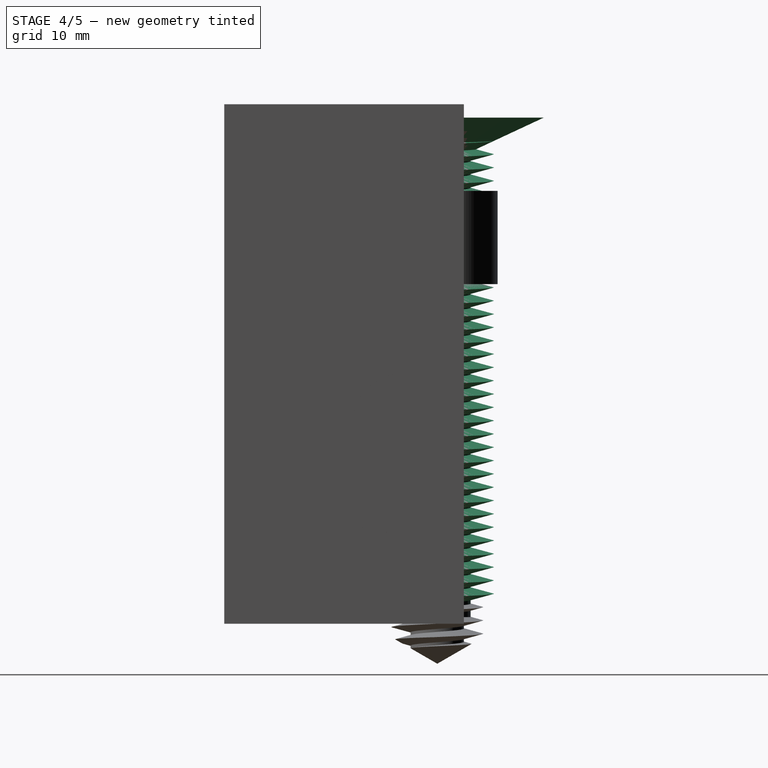
[diagram: stage 4 of 5 — right view after this stage's code; geometry added in this stage tinted green]
FEATURE [Part::Box] Box  label="Cube"
  AttacherType = Attacher::AttachEngine3D
  Height = 76
  Length = 20
  Width = 4
FEATURE [Part::Box] Box001  label="Cube001"
  AttacherType = Attacher::AttachEngine3D
  Height = 76
  Length = 4
  Placement = pos=(-4,-32,0) rot=(0,0,1;0rad)
  Width = 36
FEATURE [Part::Box] Box002  label="Cube002"
  AttacherType = Attacher::AttachEngine3D
  Height = 76
  Length = 20
  Placement = pos=(0,-16,0) rot=(0,0,1;0rad)
  Width = 4
FEATURE [Part::Cylinder] Cylinder004
  Angle = 360
  AttacherType = Attacher::AttachEngine3D
  FirstAngle = 0
  Height = 22
  Placement = pos=(-32,-6,9) rot=(0,1,0;1.5708rad)
  Radius = 2.2
  SecondAngle = 0
FEATURE [Part::Cylinder] Cylinder005
  Angle = 360
  AttacherType = Attacher::AttachEngine3D
  FirstAngle = 0
  Height = 22
  Placement = pos=(-32,-6,28) rot=(0,1,0;1.5708rad)
  Radius = 2.2
  SecondAngle = 0
FEATURE [Part::Box] Box005  label="Cube005"
  AttacherType = Attacher::AttachEngine3D
  Height = 40
  Length = 20
  Placement = pos=(0,-12,36) rot=(0,0,1;0rad)
  Width = 12
FEATURE [Part::Box] Box009  label="Cube009"
  AttacherType = Attacher::AttachEngine3D
  Height = 1
  Length = 0.3
  Placement = pos=(0,-12,0) rot=(0,0,1;0rad)
  Width = 12
FEATURE [Part::Box] Box010  label="Cube010"
  AttacherType = Attacher::AttachEngine3D
  Height = 36
  Length = 28
  Placement = pos=(-32,-32,0) rot=(0,0,1;0rad)
  Width = 36
FEATURE [Part::Box] Box011  label="Cube011"
  AttacherType = Attacher::AttachEngine3D
  Height = 36
  Length = 18
  Placement = pos=(2,-12,0) rot=(0,0,1;0rad)
  Width = 12
FEATURE [Part::Box] Box012  label="Cube012"
  AttacherType = Attacher::AttachEngine3D
  Height = 40
  Length = 10
  Placement = pos=(-14,-16,36) rot=(0,0,1;0rad)
  Width = 20
FEATURE [Part::Cylinder] Cylinder014
  Angle = 360
  AttacherType = Attacher::AttachEngine3D
  FirstAngle = 0
  Height = 30
  Placement = pos=(-10,-6,28) rot=(0,1,0;1.5708rad)
  Radius = 3.7
  SecondAngle = 0
FEATURE [Part::Cylinder] Cylinder015
  Angle = 360
  AttacherType = Attacher::AttachEngine3D
  FirstAngle = 0
  Height = 30
  Placement = pos=(-10,-6,9) rot=(0,1,0;1.5708rad)
  Radius = 3.7
  SecondAngle = 0
FEATURE [Part::MultiFuse] Fusion014
  Shapes = -> [Cylinder005,Cylinder014]
FEATURE [Part::MultiFuse] Fusion015
  Shapes = -> [Box001,Box002,Box005,Box011,Box009,Box,Box012,Box010]
FEATURE [Part::Cut] Cut
  Base = -> Fusion015
  Tool = -> Fusion014
FEATURE [Part::Cylinder] Cylinder016
  Angle = 360
  AttacherType = Attacher::AttachEngine3D
  FirstAngle = 0
  Height = 32
  Placement = pos=(-24,-24,9) rot=(0,1,0;1.5708rad)
  Radius = 2
  SecondAngle = 0
FEATURE [Part::Cylinder] Cylinder022
  Angle = 360
  AttacherType = Attacher::AttachEngine3D
  FirstAngle = 0
  Height = 2
  Placement = pos=(-24,-24,9) rot=(0,1,0;1.5708rad)
  Radius = 5.5
  SecondAngle = 0
FEATURE [Part::MultiFuse] Fusion019
  Placement = pos=(-8,0,-2) rot=(0,1,0;0rad)
  Shapes = -> [Cylinder016,Cylinder022]
FEATURE [Part::MultiFuse] Fusion020
  Shapes = -> [Cylinder019,Cylinder025]
FEATURE [Sketcher::SketchObject] Sketch005
  ArcFitTolerance = 0
  AttachmentSupport = -> [XZ_Plane013]
  FullyConstrained = true
  MakeInternals = false
  MapMode = 5
  Placement = pos=(0,0,0) rot=(1,0,0;1.5708rad)
  sketch-geometry (4):
    g0: LineSegment StartX=-4.6 StartY=-1.045 StartZ=0 EndX=-4.6 EndY=1.045 EndZ=0
    g1: LineSegment StartX=-4.6 StartY=1.045 StartZ=0 EndX=-8.5 EndY=1.2e-15 EndZ=0
    g2: LineSegment StartX=-8.5 StartY=1e-15 StartZ=0 EndX=-4.6 EndY=-1.045 EndZ=0
    g3: Circle [constr] CenterX=-6.41 CenterY=0 CenterZ=0 NormalX=0 NormalY=0 NormalZ=1 AngleXU=0 Radius=2.09
  constraints (12):
    c: Coincident(g0,g1)
    c: Coincident(g1,g2)
    c: Coincident(g2,g0)
    c: PointOnObject(g0,g3)
    c: PointOnObject(g1,g3)
    c: PointOnObject(g2,g3)
    c: PointOnObject(g3,g-1)
    c: Angle(g0,g-1) = 1.5708
    c: Equal(g1,g2)
    c: Angle(g2,g1) = 0.523599
    c: Distance(g1,g0) = 3.9
    c: Distance(g1,g-2) = 8.5
FEATURE [PartDesign::AdditiveHelix] AdditiveHelix001
  Angle = 0
  Axis = (0,2e-16,1)
  Base = (0,0,0)
  Growth = 0
  HasBeenEdited = true
  Height = 70
  LeftHanded = false
  Mode = 0
  Outside = false
  Pitch = 2
  Placement = pos=(0,0,0) rot=(1,0,0;1.5708rad)
  Profile = -> Sketch005
  ReferenceAxis = -> Sketch005 [V_Axis]
  Suppressed = false
  Tolerance = 0.1
  Turns = 35
FEATURE [PartDesign::Body] Body005
  AllowCompound = false
  Group = -> [Sketch005,AdditiveHelix001]
  Origin = -> Origin013
  Placement = pos=(0,0,1) rot=(0,0,1;0rad)
  Tip = -> AdditiveHelix001
FEATURE [Sketcher::SketchObject] Sketch008
  ArcFitTolerance = 0
  AttachmentSupport = -> [XY_Plane014]
  FullyConstrained = true
  MakeInternals = false
  MapMode = 5
  sketch-geometry (1):
    g0: Circle CenterX=0 CenterY=0 CenterZ=0 NormalX=0 NormalY=0 NormalZ=1 AngleXU=0 Radius=5
  constraints (2):
    c: Coincident(g0,g-1)
    c: Radius(g0) = 5
FEATURE [PartDesign::Pad] Pad002
  Direction = (0,0,1)
  Length = 74
  Length2 = 10
  Profile = -> Sketch008
  ReferenceAxis = -> Sketch008 [N_Axis]
  Suppressed = false
  Type = 0
FEATURE [PartDesign::Body] Body008
  AllowCompound = false
  Group = -> [Sketch008,Pad002]
  Origin = -> Origin014
  Placement = pos=(0,0,-1) rot=(0,0,1;0rad)
  Tip = -> Pad002
FEATURE [Part::Cone] Cone
  Angle = 360
  AttacherType = Attacher::AttachEngine3D
  Height = 7
  Placement = pos=(0,0,67) rot=(0,0,1;0rad)
  Radius1 = 1
  Radius2 = 16
FEATURE [Part::MultiFuse] Fusion032
  Shapes = -> [Body008,Body005]
FEATURE [Part::MultiFuse] Fusion033
  Shapes = -> [Fusion032,Cone]
FEATURE [Part::MultiFuse] Fusion043
  Shapes = -> [Fusion027,Fusion019,Fusion023,Fusion022,Fusion020,Fusion021]
FEATURE [Part::Cut] Cut013
  Base = -> Cut012
  Tool = -> Fusion043
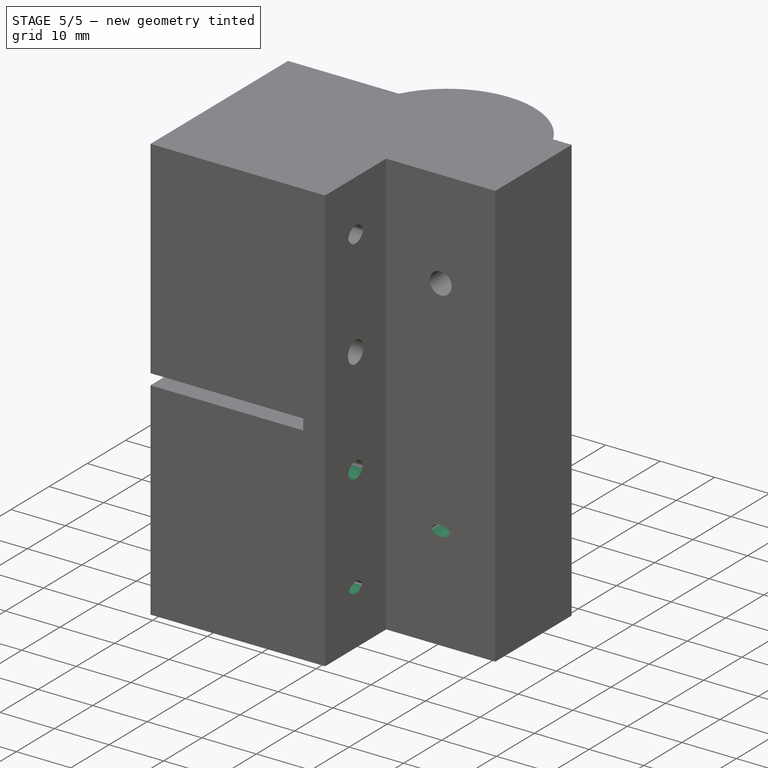
[diagram: stage 5 of 5 — iso view after this stage's code; geometry added in this stage tinted green]
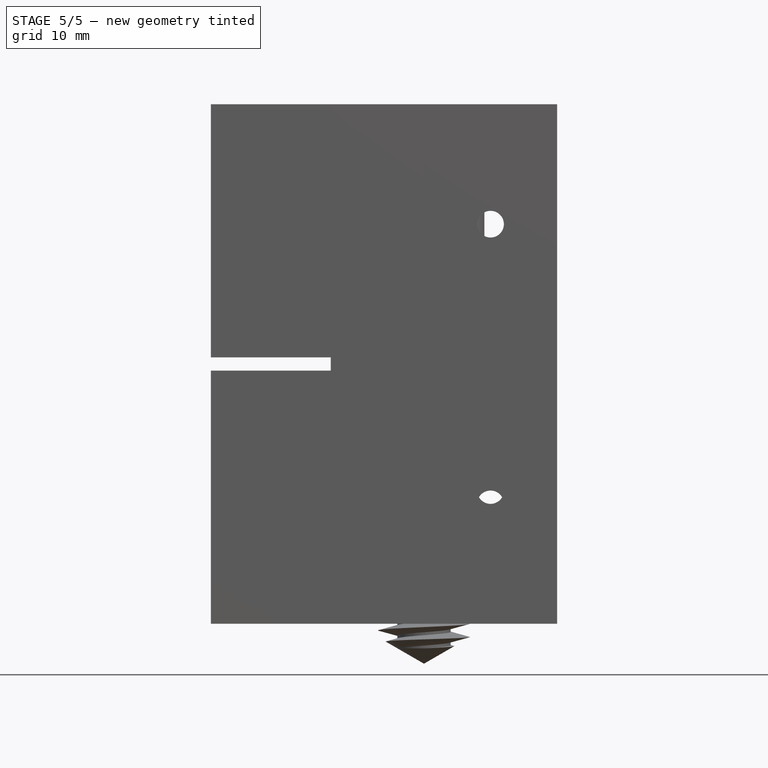
[diagram: stage 5 of 5 — front view after this stage's code; geometry added in this stage tinted green]
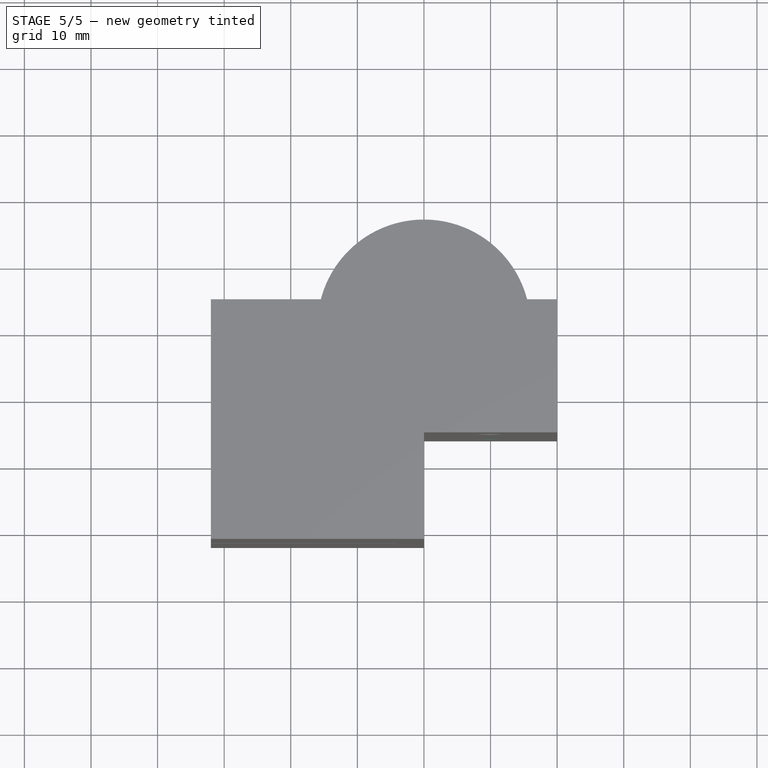
[diagram: stage 5 of 5 — top view after this stage's code; geometry added in this stage tinted green]
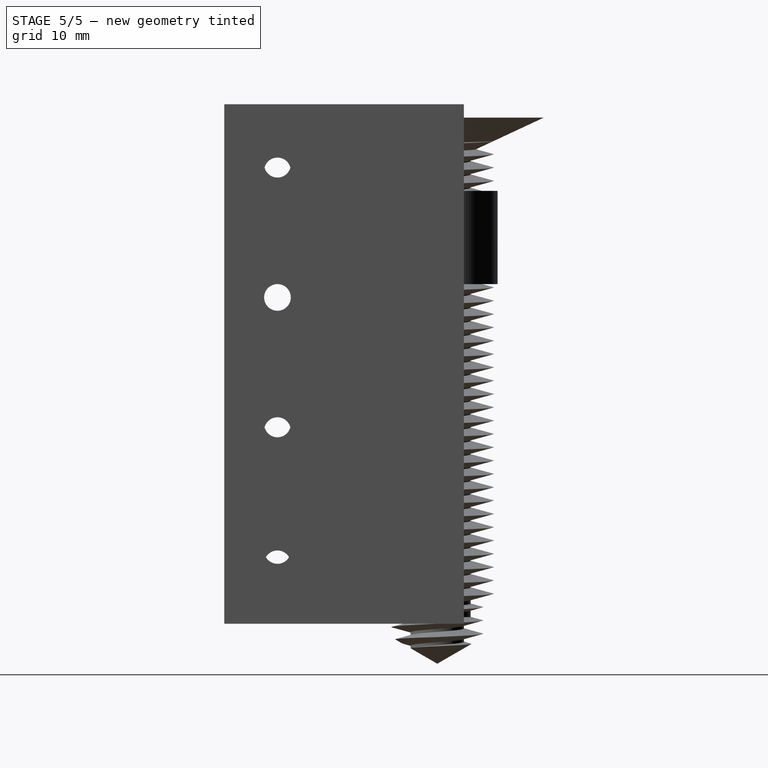
[diagram: stage 5 of 5 — right view after this stage's code; geometry added in this stage tinted green]
FEATURE [Part::Cylinder] Cylinder  label="Cylinder000"
  Angle = 360
  AttacherType = Attacher::AttachEngine3D
  FirstAngle = 0
  Height = 32
  Placement = pos=(-24,-24,9) rot=(0,1,0;1.5708rad)
  Radius = 2
  SecondAngle = 0
FEATURE [Part::Cylinder] Cylinder001
  Angle = 360
  AttacherType = Attacher::AttachEngine3D
  FirstAngle = 0
  Height = 32
  Placement = pos=(-24,-24,28) rot=(0,1,0;1.5708rad)
  Radius = 2
  SecondAngle = 0
FEATURE [Part::Cylinder] Cylinder002
  Angle = 360
  AttacherType = Attacher::AttachEngine3D
  FirstAngle = 0
  Height = 4
  Placement = pos=(-4,-24,47) rot=(0,1,0;1.5708rad)
  Radius = 2
  SecondAngle = 0
FEATURE [Part::Cylinder] Cylinder003
  Angle = 360
  AttacherType = Attacher::AttachEngine3D
  FirstAngle = 0
  Height = 4
  Placement = pos=(-4,-24,66) rot=(0,1,0;1.5708rad)
  Radius = 2
  SecondAngle = 0
FEATURE [Part::Cylinder] Cylinder006
  Angle = 360
  AttacherType = Attacher::AttachEngine3D
  FirstAngle = 0
  Height = 2
  Placement = pos=(-24,-24,9) rot=(0,1,0;1.5708rad)
  Radius = 5.5
  SecondAngle = 0
FEATURE [Part::Cylinder] Cylinder007
  Angle = 360
  AttacherType = Attacher::AttachEngine3D
  FirstAngle = 0
  Height = 2
  Placement = pos=(-24,-24,28) rot=(0,1,0;1.5708rad)
  Radius = 5.5
  SecondAngle = 0
FEATURE [Part::Cylinder] Cylinder008
  Angle = 360
  AttacherType = Attacher::AttachEngine3D
  FirstAngle = 0
  Height = 2
  Placement = pos=(-4,-24,47) rot=(0,1,0;1.5708rad)
  Radius = 5.5
  SecondAngle = 0
FEATURE [Part::Cylinder] Cylinder009
  Angle = 360
  AttacherType = Attacher::AttachEngine3D
  FirstAngle = 0
  Height = 2
  Placement = pos=(-4,-24,66) rot=(0,1,0;1.5708rad)
  Radius = 5.5
  SecondAngle = 0
FEATURE [Part::MultiFuse] Fusion
  Placement = pos=(-8,0,0) rot=(0,0,1;0rad)
  Shapes = -> [Cylinder001,Cylinder007]
FEATURE [Part::MultiFuse] Fusion005
  Placement = pos=(-8,0,0) rot=(0,1,0;0rad)
  Shapes = -> [Cylinder,Cylinder006]
FEATURE [Part::MultiFuse] Fusion006
  Shapes = -> [Cylinder003,Cylinder009]
FEATURE [Part::MultiFuse] Fusion007
  Shapes = -> [Cylinder002,Cylinder008]
FEATURE [Part::Cylinder] Cylinder010  label="Cylinder"
  Angle = 360
  AttacherType = Attacher::AttachEngine3D
  FirstAngle = 0
  Height = 2
  Placement = pos=(10,4,18) rot=(1,0,0;1.5708rad)
  Radius = 5.5
  SecondAngle = 0
FEATURE [Part::Cylinder] Cylinder011
  Angle = 360
  AttacherType = Attacher::AttachEngine3D
  FirstAngle = 0
  Height = 20
  Placement = pos=(10,4,58) rot=(1,0,0;1.5708rad)
  Radius = 2
  SecondAngle = 0
FEATURE [Part::Cylinder] Cylinder012
  Angle = 360
  AttacherType = Attacher::AttachEngine3D
  FirstAngle = 0
  Height = 20
  Placement = pos=(10,4,18) rot=(1,0,0;1.5708rad)
  Radius = 2
  SecondAngle = 0
FEATURE [Part::Cylinder] Cylinder013
  Angle = 360
  AttacherType = Attacher::AttachEngine3D
  FirstAngle = 0
  Height = 2
  Placement = pos=(10,4,58) rot=(1,0,0;1.5708rad)
  Radius = 5.5
  SecondAngle = 0
FEATURE [Part::MultiFuse] Fusion011
  Shapes = -> [Cylinder010,Cylinder012]
FEATURE [Part::MultiFuse] Fusion012
  Shapes = -> [Cylinder013,Cylinder011]
FEATURE [Part::MultiFuse] Fusion013
  Shapes = -> [Cylinder015,Cylinder004]
FEATURE [Part::Cut] Cut001
  Base = -> Cut
  Tool = -> Fusion013
FEATURE [Part::Cut] Cut002
  Base = -> Cut001
  Tool = -> Fusion006
FEATURE [Part::Cut] Cut003
  Base = -> Cut002
  Tool = -> Fusion011
FEATURE [Part::Cut] Cut004
  Base = -> Cut003
  Tool = -> Fusion007
FEATURE [Part::Cut] Cut005
  Base = -> Cut004
  Tool = -> Fusion012
FEATURE [Part::Cut] Cut006
  Base = -> Cut005
  Tool = -> Fusion005
FEATURE [Part::Cut] Cut007
  Base = -> Cut006
  Tool = -> Fusion
FEATURE [Part::Chamfer] Chamfer
  Base = -> Cut007
  EdgeLinks = -> Cut007 [Edge48,Edge49]
  Edges = 2 edges r=5: [Edge48,Edge49]
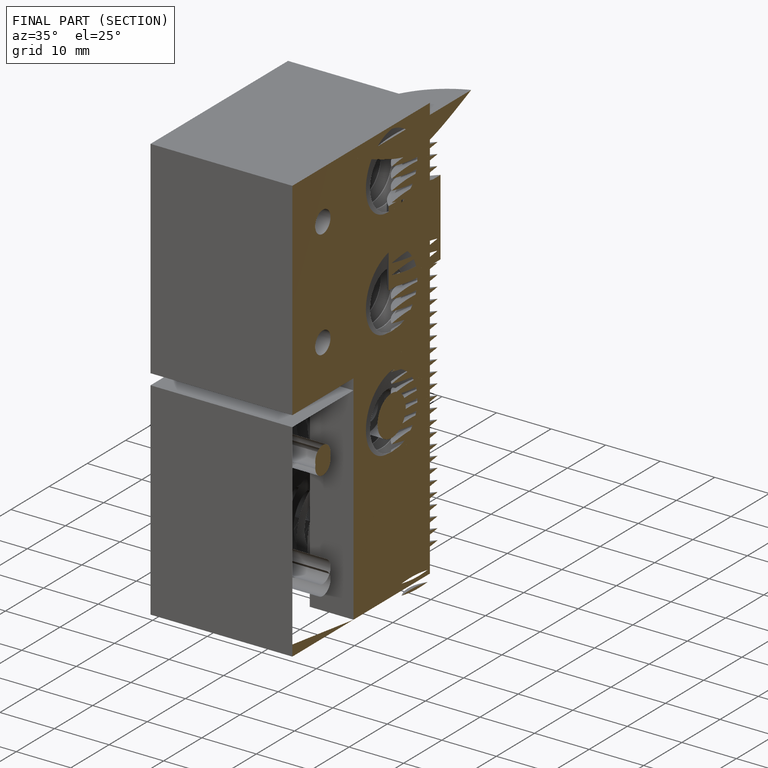
[diagram: finished part — half-section view (interior)]
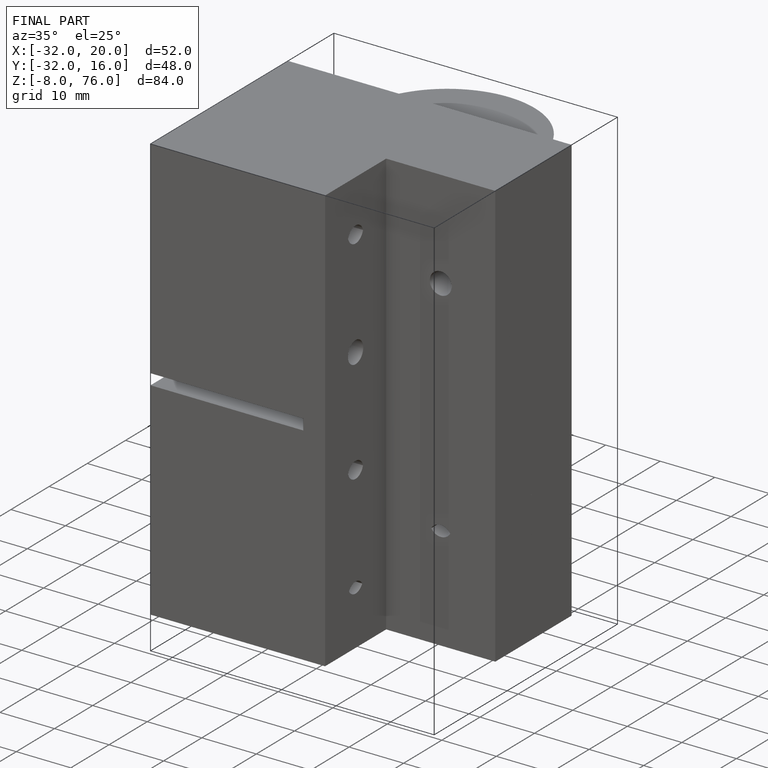
[diagram: finished part — iso view with bounding-box wireframe]
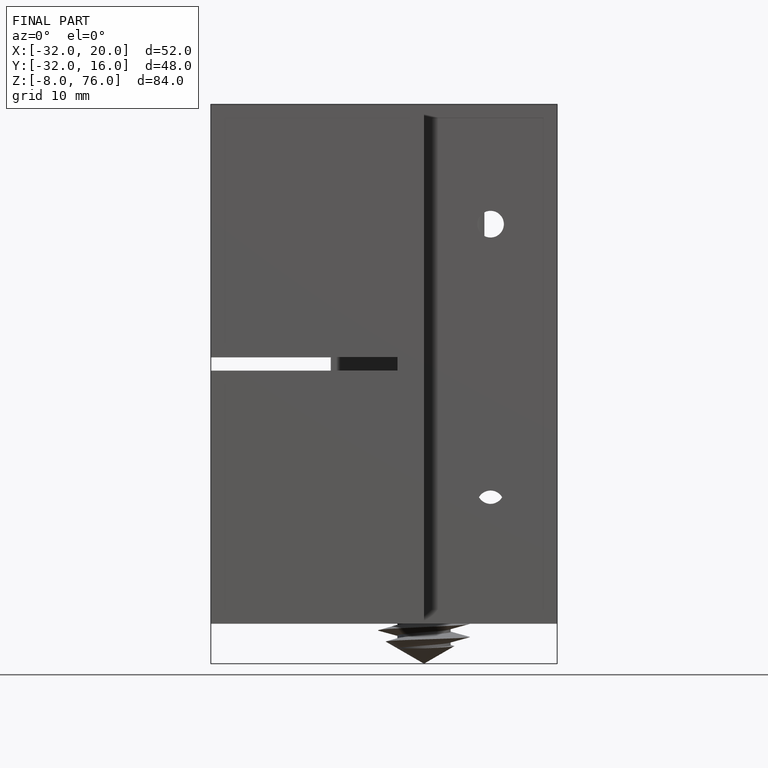
[diagram: finished part — front view with bounding-box wireframe]
